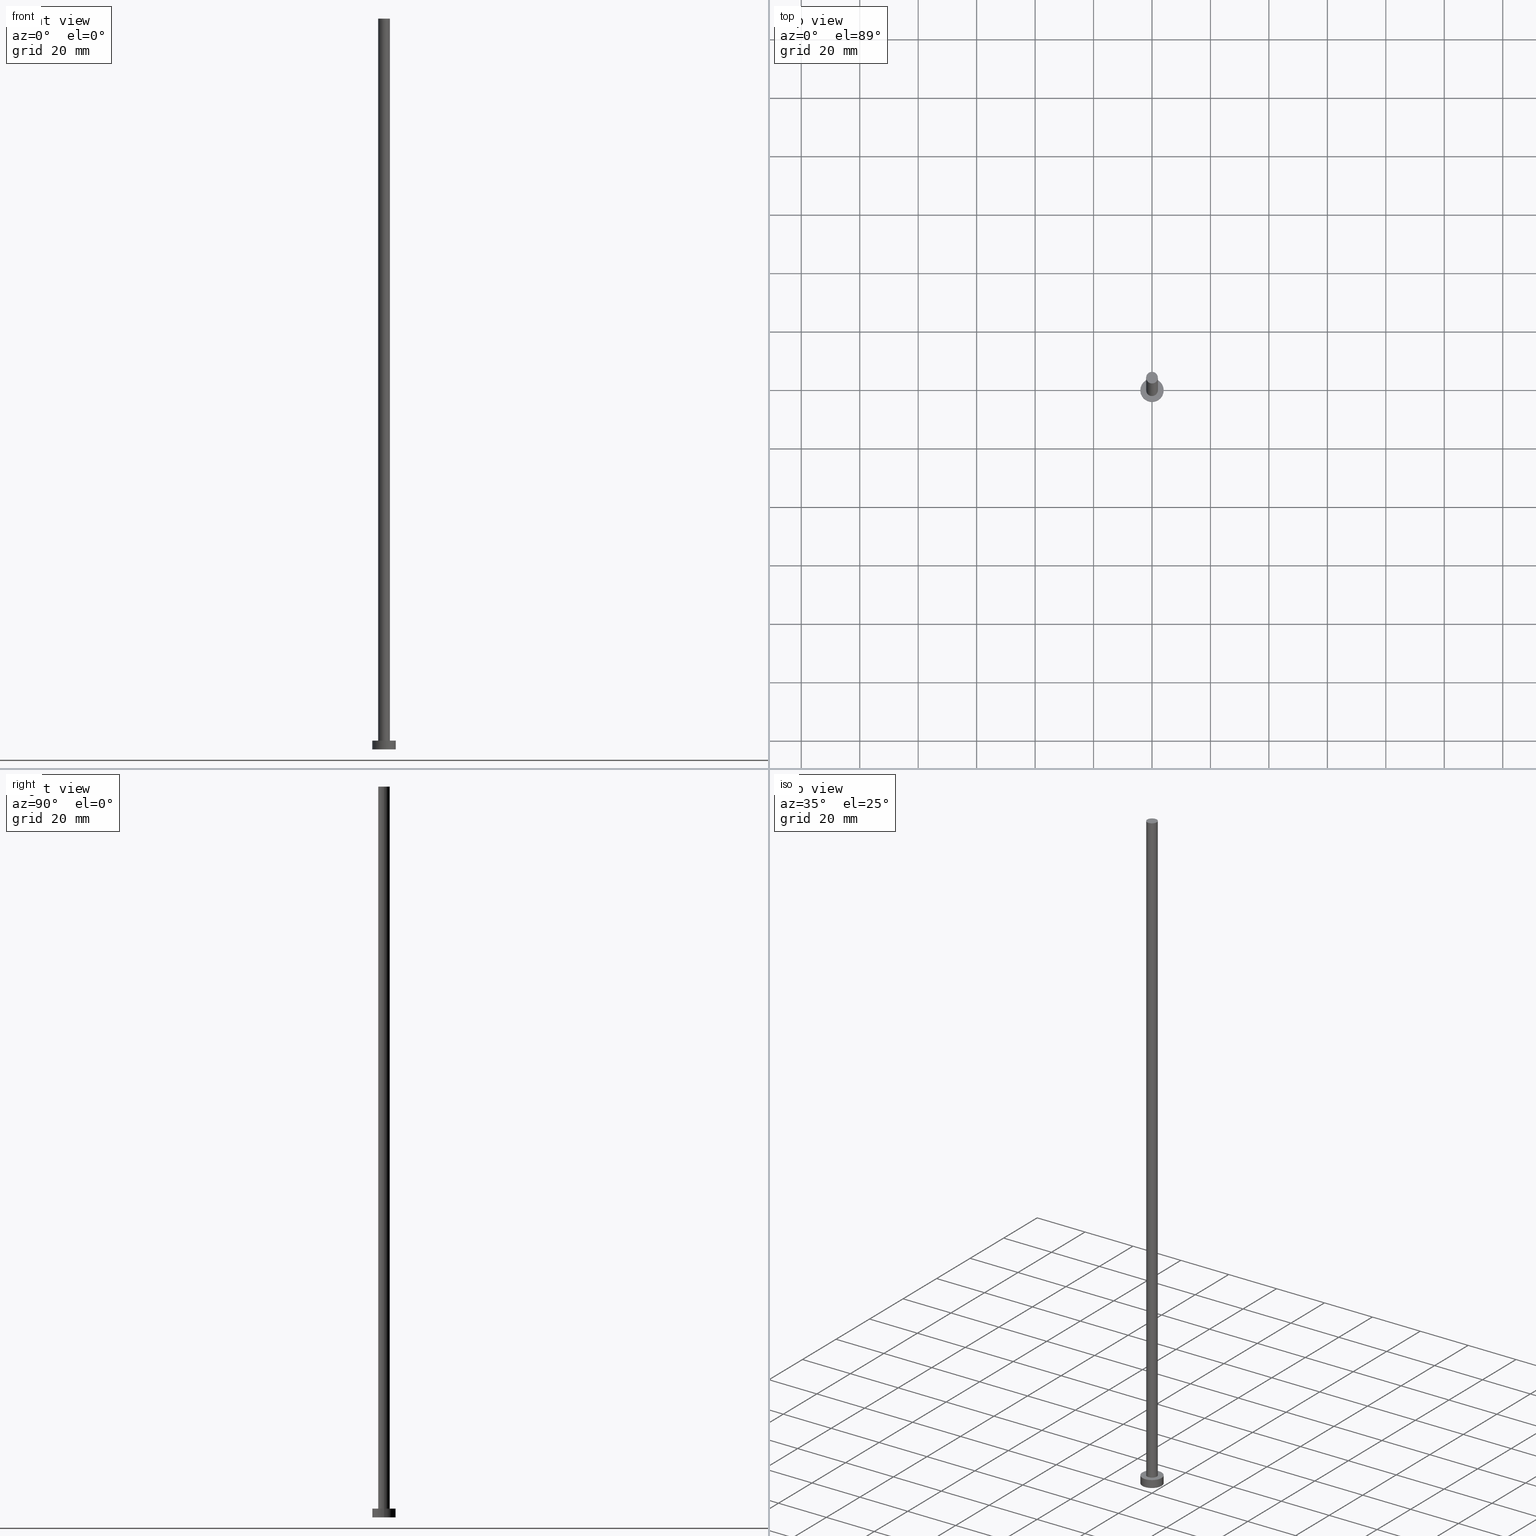
[diagram: canonical four-view strip — front | top / right | iso, engineering-drawing reading convention]
A machine part, canonical four-view strip (front | top / right | iso — engineering-drawing reading convention). The complete STEP part file that produces these views, byte-faithful:
ISO-10303-21;
HEADER;
FILE_DESCRIPTION (( 'STEP AP203' ),
    '1' );
FILE_NAME ('8a8c.STEP',
    '2023-02-12T12:39:16',
    ( '' ),
    ( '' ),
    'SwSTEP 2.0',
    'SolidWorks 2019',
    '' );
FILE_SCHEMA (( 'CONFIG_CONTROL_DESIGN' ));
ENDSEC;

DATA;
#1 = DIRECTION ( 'NONE',  ( 1.000000000000000000, 0.000000000000000000, 0.000000000000000000 ) ) ;
#2 = FACE_BOUND ( 'NONE', #85, .T. ) ;
#3 = EDGE_LOOP ( 'NONE', ( #123, #203, #207, #62 ) ) ;
#4 = ADVANCED_FACE ( 'NONE', ( #243 ), #206, .T. ) ;
#5 = ORIENTED_EDGE ( 'NONE', *, *, #8, .F. ) ;
#6 = CIRCLE ( 'NONE', #153, 4.000000000000000000 ) ;
#7 = VERTEX_POINT ( 'NONE', #129 ) ;
#8 = EDGE_CURVE ( 'NONE', #60, #78, #184, .T. ) ;
#9 = CARTESIAN_POINT ( 'NONE',  ( 0.000000000000000000, 0.000000000000000000, 250.0000000000000000 ) ) ;
#10 = EDGE_CURVE ( 'NONE', #25, #183, #131, .T. ) ;
#11 = CARTESIAN_POINT ( 'NONE',  ( 0.000000000000000000, 0.000000000000000000, 250.0000000000000000 ) ) ;
#12 = PERSON_AND_ORGANIZATION ( #40, #136 ) ;
#13 = APPROVAL_PERSON_ORGANIZATION ( #92, #106, #255 ) ;
#14 = DIRECTION ( 'NONE',  ( 1.000000000000000000, 0.000000000000000000, 0.000000000000000000 ) ) ;
#15 = APPROVAL_STATUS ( 'not_yet_approved' ) ;
#16 = DIRECTION ( 'NONE',  ( -0.000000000000000000, -0.000000000000000000, -1.000000000000000000 ) ) ;
#17 = PERSON_AND_ORGANIZATION_ROLE ( 'design_owner' ) ;
#18 = CIRCLE ( 'NONE', #166, 2.000000000000000000 ) ;
#19 = PERSON_AND_ORGANIZATION ( #40, #136 ) ;
#20 = CC_DESIGN_PERSON_AND_ORGANIZATION_ASSIGNMENT ( #72, #50, ( #46 ) ) ;
#21 = DIRECTION ( 'NONE',  ( 0.000000000000000000, 0.000000000000000000, 1.000000000000000000 ) ) ;
#22 = EDGE_LOOP ( 'NONE', ( #44, #64 ) ) ;
#23 = PRODUCT_RELATED_PRODUCT_CATEGORY ( 'detail', '', ( #182 ) ) ;
#24 = EDGE_LOOP ( 'NONE', ( #105, #86, #127, #150 ) ) ;
#25 = VERTEX_POINT ( 'NONE', #188 ) ;
#26 = CARTESIAN_POINT ( 'NONE',  ( -4.000000000000000000, 0.000000000000000000, 3.000000000000000000 ) ) ;
#27 = CC_DESIGN_SECURITY_CLASSIFICATION ( #144, ( #46 ) ) ;
#28 = CARTESIAN_POINT ( 'NONE',  ( 2.000000000000000000, 2.449293598294706414E-16, 250.0000000000000000 ) ) ;
#29 = EDGE_CURVE ( 'NONE', #7, #226, #162, .T. ) ;
#30 = APPROVAL_ROLE ( '' ) ;
#31 = AXIS2_PLACEMENT_3D ( 'NONE', #143, #118, #1 ) ;
#32 = MECHANICAL_CONTEXT ( 'NONE', #237, 'mechanical' ) ;
#33 = EDGE_CURVE ( 'NONE', #183, #226, #212, .T. ) ;
#34 = CARTESIAN_POINT ( 'NONE',  ( 0.000000000000000000, 0.000000000000000000, 3.000000000000000000 ) ) ;
#35 = EDGE_CURVE ( 'NONE', #78, #60, #147, .T. ) ;
#36 = VECTOR ( 'NONE', #179, 1000.000000000000000 ) ;
#37 = FACE_OUTER_BOUND ( 'NONE', #165, .T. ) ;
#38 = FACE_OUTER_BOUND ( 'NONE', #22, .T. ) ;
#39 = DIRECTION ( 'NONE',  ( 0.000000000000000000, 0.000000000000000000, 1.000000000000000000 ) ) ;
#40 = PERSON ( 'NEUR�EN�', 'NEUR�EN�', 'NEUR�EN�', ('NEUR�EN�'), ('NEUR�EN�'), ('NEUR�EN�') ) ;
#41 = EDGE_LOOP ( 'NONE', ( #5, #125, #145, #205 ) ) ;
#42 = ORIENTED_EDGE ( 'NONE', *, *, #33, .T. ) ;
#43 = ORIENTED_EDGE ( 'NONE', *, *, #112, .F. ) ;
#44 = ORIENTED_EDGE ( 'NONE', *, *, #35, .T. ) ;
#45 = CARTESIAN_POINT ( 'NONE',  ( 0.000000000000000000, 0.000000000000000000, 3.000000000000000000 ) ) ;
#46 = PRODUCT_DEFINITION_FORMATION_WITH_SPECIFIED_SOURCE ( 'LIBOVOLN�', '', #182, .NOT_KNOWN. ) ;
#47 = DIRECTION ( 'NONE',  ( 0.000000000000000000, 0.000000000000000000, 1.000000000000000000 ) ) ;
#48 = CALENDAR_DATE ( 2023, 12, 2 ) ;
#49 = ADVANCED_FACE ( 'NONE', ( #65 ), #132, .T. ) ;
#50 = PERSON_AND_ORGANIZATION_ROLE ( 'creator' ) ;
#51 = APPROVAL ( #221, 'NEUR�EN�' ) ;
#52 = CARTESIAN_POINT ( 'NONE',  ( -2.000000000000000000, 0.000000000000000000, 250.0000000000000000 ) ) ;
#53 = PERSON_AND_ORGANIZATION ( #40, #136 ) ;
#54 = CARTESIAN_POINT ( 'NONE',  ( 0.000000000000000000, 0.000000000000000000, 3.000000000000000000 ) ) ;
#55 = CARTESIAN_POINT ( 'NONE',  ( 2.000000000000000000, 2.449293598294706414E-16, 3.000000000000000000 ) ) ;
#56 = PLANE ( 'NONE',  #245 ) ;
#57 = DIRECTION ( 'NONE',  ( -0.000000000000000000, -0.000000000000000000, -1.000000000000000000 ) ) ;
#58 = AXIS2_PLACEMENT_3D ( 'NONE', #88, #173, #189 ) ;
#59 = AXIS2_PLACEMENT_3D ( 'NONE', #119, #120, #238 ) ;
#60 = VERTEX_POINT ( 'NONE', #28 ) ;
#61 = PRODUCT_DEFINITION_SHAPE ( 'NONE', 'NONE',  #83 ) ;
#62 = ORIENTED_EDGE ( 'NONE', *, *, #10, .F. ) ;
#63 = LOCAL_TIME ( 13, 39, 16.00000000000000000, #114 ) ;
#64 = ORIENTED_EDGE ( 'NONE', *, *, #8, .T. ) ;
#65 = FACE_OUTER_BOUND ( 'NONE', #24, .T. ) ;
#66 = CC_DESIGN_PERSON_AND_ORGANIZATION_ASSIGNMENT ( #19, #199, ( #46 ) ) ;
#67 = AXIS2_PLACEMENT_3D ( 'NONE', #9, #87, #152 ) ;
#68 = FACE_OUTER_BOUND ( 'NONE', #187, .T. ) ;
#69 = COORDINATED_UNIVERSAL_TIME_OFFSET ( 1, 0, .AHEAD. ) ;
#70 = DIRECTION ( 'NONE',  ( -1.000000000000000000, 0.000000000000000000, 0.000000000000000000 ) ) ;
#71 = ADVANCED_FACE ( 'NONE', ( #68 ), #115, .T. ) ;
#72 = PERSON_AND_ORGANIZATION ( #40, #136 ) ;
#73 = LOCAL_TIME ( 13, 39, 16.00000000000000000, #69 ) ;
#74 = PLANE ( 'NONE',  #111 ) ;
#75 = DATE_AND_TIME ( #91, #73 ) ;
#76 = CARTESIAN_POINT ( 'NONE',  ( -2.000000000000000000, 0.000000000000000000, 250.0000000000000000 ) ) ;
#77 = CC_DESIGN_PERSON_AND_ORGANIZATION_ASSIGNMENT ( #197, #17, ( #182 ) ) ;
#78 = VERTEX_POINT ( 'NONE', #76 ) ;
#79 = DATE_AND_TIME ( #201, #96 ) ;
#80 = ORIENTED_EDGE ( 'NONE', *, *, #126, .T. ) ;
#81 = APPROVAL_PERSON_ORGANIZATION ( #12, #109, #30 ) ;
#82 = PERSON_AND_ORGANIZATION_ROLE ( 'classification_officer' ) ;
#83 = PRODUCT_DEFINITION ( 'NEZN�M�', '', #46, #93 ) ;
#84 = AXIS2_PLACEMENT_3D ( 'NONE', #233, #21, #140 ) ;
#85 = EDGE_LOOP ( 'NONE', ( #43, #241 ) ) ;
#86 = ORIENTED_EDGE ( 'NONE', *, *, #35, .F. ) ;
#87 = DIRECTION ( 'NONE',  ( 0.000000000000000000, 0.000000000000000000, 1.000000000000000000 ) ) ;
#88 = CARTESIAN_POINT ( 'NONE',  ( 0.000000000000000000, 0.000000000000000000, 250.0000000000000000 ) ) ;
#89 = ADVANCED_FACE ( 'NONE', ( #38 ), #232, .T. ) ;
#90 =( NAMED_UNIT ( * ) SI_UNIT ( $, .STERADIAN. ) SOLID_ANGLE_UNIT ( ) );
#91 = CALENDAR_DATE ( 2023, 12, 2 ) ;
#92 = PERSON_AND_ORGANIZATION ( #40, #136 ) ;
#93 = DESIGN_CONTEXT ( 'detailed design', #181, 'design' ) ;
#94 = DIRECTION ( 'NONE',  ( 0.000000000000000000, 0.000000000000000000, 1.000000000000000000 ) ) ;
#95 = APPROVAL_DATE_TIME ( #75, #106 ) ;
#96 = LOCAL_TIME ( 13, 39, 16.00000000000000000, #160 ) ;
#97 = DIRECTION ( 'NONE',  ( -1.000000000000000000, 0.000000000000000000, 0.000000000000000000 ) ) ;
#98 = AXIS2_PLACEMENT_3D ( 'NONE', #215, #47, #247 ) ;
#99 = DIRECTION ( 'NONE',  ( 1.000000000000000000, 0.000000000000000000, 0.000000000000000000 ) ) ;
#100 = SHAPE_DEFINITION_REPRESENTATION ( #61, #191 ) ;
#101 = CARTESIAN_POINT ( 'NONE',  ( 0.000000000000000000, 0.000000000000000000, 3.000000000000000000 ) ) ;
#102 = ADVANCED_FACE ( 'NONE', ( #37 ), #74, .F. ) ;
#103 = DATE_TIME_ROLE ( 'classification_date' ) ;
#104 = FACE_OUTER_BOUND ( 'NONE', #186, .T. ) ;
#105 = ORIENTED_EDGE ( 'NONE', *, *, #158, .F. ) ;
#106 = APPROVAL ( #15, 'NEUR�EN�' ) ;
#107 = VERTEX_POINT ( 'NONE', #55 ) ;
#108 = VERTEX_POINT ( 'NONE', #195 ) ;
#109 = APPROVAL ( #213, 'NEUR�EN�' ) ;
#110 = DIRECTION ( 'NONE',  ( -0.000000000000000000, -0.000000000000000000, -1.000000000000000000 ) ) ;
#111 = AXIS2_PLACEMENT_3D ( 'NONE', #138, #236, #159 ) ;
#112 = EDGE_CURVE ( 'NONE', #108, #107, #18, .T. ) ;
#113 = DATE_AND_TIME ( #48, #211 ) ;
#114 = COORDINATED_UNIVERSAL_TIME_OFFSET ( 1, 0, .AHEAD. ) ;
#115 = CYLINDRICAL_SURFACE ( 'NONE', #242, 4.000000000000000000 ) ;
#116 = DIRECTION ( 'NONE',  ( -0.000000000000000000, -0.000000000000000000, -1.000000000000000000 ) ) ;
#117 = CC_DESIGN_PERSON_AND_ORGANIZATION_ASSIGNMENT ( #53, #82, ( #144 ) ) ;
#118 = DIRECTION ( 'NONE',  ( 0.000000000000000000, 0.000000000000000000, 1.000000000000000000 ) ) ;
#119 = CARTESIAN_POINT ( 'NONE',  ( 0.000000000000000000, 0.000000000000000000, 250.0000000000000000 ) ) ;
#120 = DIRECTION ( 'NONE',  ( 0.000000000000000000, 0.000000000000000000, 1.000000000000000000 ) ) ;
#121 = AXIS2_PLACEMENT_3D ( 'NONE', #168, #209, #244 ) ;
#122 = DIRECTION ( 'NONE',  ( 1.000000000000000000, 0.000000000000000000, -0.000000000000000000 ) ) ;
#123 = ORIENTED_EDGE ( 'NONE', *, *, #134, .F. ) ;
#124 = APPROVAL_ROLE ( '' ) ;
#125 = ORIENTED_EDGE ( 'NONE', *, *, #158, .T. ) ;
#126 = EDGE_CURVE ( 'NONE', #25, #7, #240, .T. ) ;
#127 = ORIENTED_EDGE ( 'NONE', *, *, #141, .T. ) ;
#128 = AXIS2_PLACEMENT_3D ( 'NONE', #231, #94, #216 ) ;
#129 = CARTESIAN_POINT ( 'NONE',  ( 4.000000000000000000, 4.898587196589412829E-16, 3.000000000000000000 ) ) ;
#130 =( LENGTH_UNIT ( ) NAMED_UNIT ( * ) SI_UNIT ( .MILLI., .METRE. ) );
#131 = LINE ( 'NONE', #26, #253 ) ;
#132 = CYLINDRICAL_SURFACE ( 'NONE', #176, 2.000000000000000000 ) ;
#133 = DIRECTION ( 'NONE',  ( 1.000000000000000000, 0.000000000000000000, 0.000000000000000000 ) ) ;
#134 = EDGE_CURVE ( 'NONE', #7, #25, #6, .T. ) ;
#135 = COORDINATED_UNIVERSAL_TIME_OFFSET ( 1, 0, .AHEAD. ) ;
#136 = ORGANIZATION ( 'NEUR�EN�', 'NEUR�EN�', '' ) ;
#137 = AXIS2_PLACEMENT_3D ( 'NONE', #45, #228, #133 ) ;
#138 = CARTESIAN_POINT ( 'NONE',  ( 0.000000000000000000, 0.000000000000000000, 0.000000000000000000 ) ) ;
#139 = FACE_OUTER_BOUND ( 'NONE', #3, .T. ) ;
#140 = DIRECTION ( 'NONE',  ( 1.000000000000000000, 0.000000000000000000, 0.000000000000000000 ) ) ;
#141 = EDGE_CURVE ( 'NONE', #78, #108, #156, .T. ) ;
#142 = APPROVAL_DATE_TIME ( #204, #51 ) ;
#143 = CARTESIAN_POINT ( 'NONE',  ( 0.000000000000000000, 0.000000000000000000, 0.000000000000000000 ) ) ;
#144 = SECURITY_CLASSIFICATION ( '', '', #146 ) ;
#145 = ORIENTED_EDGE ( 'NONE', *, *, #210, .T. ) ;
#146 = SECURITY_CLASSIFICATION_LEVEL ( 'unclassified' ) ;
#147 = CIRCLE ( 'NONE', #58, 2.000000000000000000 ) ;
#148 = CARTESIAN_POINT ( 'NONE',  ( 0.000000000000000000, 0.000000000000000000, 3.000000000000000000 ) ) ;
#149 = ORIENTED_EDGE ( 'NONE', *, *, #29, .F. ) ;
#150 = ORIENTED_EDGE ( 'NONE', *, *, #112, .T. ) ;
#151 = CC_DESIGN_APPROVAL ( #106, ( #83 ) ) ;
#152 = DIRECTION ( 'NONE',  ( 1.000000000000000000, 0.000000000000000000, 0.000000000000000000 ) ) ;
#153 = AXIS2_PLACEMENT_3D ( 'NONE', #101, #249, #99 ) ;
#154 = PERSON_AND_ORGANIZATION_ROLE ( 'creator' ) ;
#155 = AXIS2_PLACEMENT_3D ( 'NONE', #34, #16, #97 ) ;
#156 = LINE ( 'NONE', #52, #36 ) ;
#157 = PERSON_AND_ORGANIZATION ( #40, #136 ) ;
#158 = EDGE_CURVE ( 'NONE', #60, #107, #217, .T. ) ;
#159 = DIRECTION ( 'NONE',  ( 1.000000000000000000, 0.000000000000000000, -0.000000000000000000 ) ) ;
#160 = COORDINATED_UNIVERSAL_TIME_OFFSET ( 1, 0, .AHEAD. ) ;
#161 = CIRCLE ( 'NONE', #31, 4.000000000000000000 ) ;
#162 = LINE ( 'NONE', #239, #230 ) ;
#163 = ADVANCED_FACE ( 'NONE', ( #139 ), #196, .T. ) ;
#164 = APPROVAL_PERSON_ORGANIZATION ( #234, #51, #124 ) ;
#165 = EDGE_LOOP ( 'NONE', ( #227, #169 ) ) ;
#166 = AXIS2_PLACEMENT_3D ( 'NONE', #54, #200, #14 ) ;
#167 = ORIENTED_EDGE ( 'NONE', *, *, #126, .F. ) ;
#168 = CARTESIAN_POINT ( 'NONE',  ( 0.000000000000000000, 0.000000000000000000, 250.0000000000000000 ) ) ;
#169 = ORIENTED_EDGE ( 'NONE', *, *, #171, .F. ) ;
#170 = CARTESIAN_POINT ( 'NONE',  ( 4.000000000000000000, 4.898587196589412829E-16, 0.000000000000000000 ) ) ;
#171 = EDGE_CURVE ( 'NONE', #226, #183, #161, .T. ) ;
#172 = DATE_AND_TIME ( #192, #63 ) ;
#173 = DIRECTION ( 'NONE',  ( 0.000000000000000000, 0.000000000000000000, 1.000000000000000000 ) ) ;
#174 = MANIFOLD_SOLID_BREP ( 'P�idat vysunut�m3', #175 ) ;
#175 = CLOSED_SHELL ( 'NONE', ( #4, #163, #71, #219, #102, #49, #89 ) ) ;
#176 = AXIS2_PLACEMENT_3D ( 'NONE', #11, #246, #70 ) ;
#177 = APPLICATION_PROTOCOL_DEFINITION ( 'international standard', 'config_control_design', 1994, #181 ) ;
#178 = CC_DESIGN_DATE_AND_TIME_ASSIGNMENT ( #79, #103, ( #144 ) ) ;
#179 = DIRECTION ( 'NONE',  ( -0.000000000000000000, -0.000000000000000000, -1.000000000000000000 ) ) ;
#180 = CARTESIAN_POINT ( 'NONE',  ( -4.000000000000000000, 0.000000000000000000, 0.000000000000000000 ) ) ;
#181 = APPLICATION_CONTEXT ( 'configuration controlled 3d designs of mechanical parts and assemblies' ) ;
#182 = PRODUCT ( '8a8c', '8a8c', '', ( #32 ) ) ;
#183 = VERTEX_POINT ( 'NONE', #180 ) ;
#184 = CIRCLE ( 'NONE', #67, 2.000000000000000000 ) ;
#185 = ORIENTED_EDGE ( 'NONE', *, *, #10, .T. ) ;
#186 = EDGE_LOOP ( 'NONE', ( #80, #224 ) ) ;
#187 = EDGE_LOOP ( 'NONE', ( #149, #167, #185, #42 ) ) ;
#188 = CARTESIAN_POINT ( 'NONE',  ( -4.000000000000000000, 0.000000000000000000, 3.000000000000000000 ) ) ;
#189 = DIRECTION ( 'NONE',  ( 1.000000000000000000, 0.000000000000000000, 0.000000000000000000 ) ) ;
#190 = DATE_TIME_ROLE ( 'creation_date' ) ;
#191 = ADVANCED_BREP_SHAPE_REPRESENTATION ( '8a8c', ( #174, #128 ), #198 ) ;
#192 = CALENDAR_DATE ( 2023, 12, 2 ) ;
#193 = UNCERTAINTY_MEASURE_WITH_UNIT (LENGTH_MEASURE( 1.000000000000000082E-05 ), #130, 'distance_accuracy_value', 'NONE');
#194 = CARTESIAN_POINT ( 'NONE',  ( 0.000000000000000000, 0.000000000000000000, 3.000000000000000000 ) ) ;
#195 = CARTESIAN_POINT ( 'NONE',  ( -2.000000000000000000, 0.000000000000000000, 3.000000000000000000 ) ) ;
#196 = CYLINDRICAL_SURFACE ( 'NONE', #155, 4.000000000000000000 ) ;
#197 = PERSON_AND_ORGANIZATION ( #40, #136 ) ;
#198 =( GEOMETRIC_REPRESENTATION_CONTEXT ( 3 ) GLOBAL_UNCERTAINTY_ASSIGNED_CONTEXT ( ( #193 ) ) GLOBAL_UNIT_ASSIGNED_CONTEXT ( ( #130, #208, #90 ) ) REPRESENTATION_CONTEXT ( 'NONE', 'WORKASPACE' ) );
#199 = PERSON_AND_ORGANIZATION_ROLE ( 'design_supplier' ) ;
#200 = DIRECTION ( 'NONE',  ( 0.000000000000000000, 0.000000000000000000, 1.000000000000000000 ) ) ;
#201 = CALENDAR_DATE ( 2023, 12, 2 ) ;
#202 = CALENDAR_DATE ( 2023, 12, 2 ) ;
#203 = ORIENTED_EDGE ( 'NONE', *, *, #29, .T. ) ;
#204 = DATE_AND_TIME ( #202, #223 ) ;
#205 = ORIENTED_EDGE ( 'NONE', *, *, #141, .F. ) ;
#206 = CYLINDRICAL_SURFACE ( 'NONE', #121, 2.000000000000000000 ) ;
#207 = ORIENTED_EDGE ( 'NONE', *, *, #171, .T. ) ;
#208 =( NAMED_UNIT ( * ) PLANE_ANGLE_UNIT ( ) SI_UNIT ( $, .RADIAN. ) );
#209 = DIRECTION ( 'NONE',  ( -0.000000000000000000, -0.000000000000000000, -1.000000000000000000 ) ) ;
#210 = EDGE_CURVE ( 'NONE', #107, #108, #235, .T. ) ;
#211 = LOCAL_TIME ( 13, 39, 16.00000000000000000, #135 ) ;
#212 = CIRCLE ( 'NONE', #98, 4.000000000000000000 ) ;
#213 = APPROVAL_STATUS ( 'not_yet_approved' ) ;
#214 = CC_DESIGN_APPROVAL ( #51, ( #144 ) ) ;
#215 = CARTESIAN_POINT ( 'NONE',  ( 0.000000000000000000, 0.000000000000000000, 0.000000000000000000 ) ) ;
#216 = DIRECTION ( 'NONE',  ( 1.000000000000000000, 0.000000000000000000, 0.000000000000000000 ) ) ;
#217 = LINE ( 'NONE', #220, #251 ) ;
#218 = DIRECTION ( 'NONE',  ( -0.000000000000000000, -0.000000000000000000, -1.000000000000000000 ) ) ;
#219 = ADVANCED_FACE ( 'NONE', ( #2, #104 ), #56, .T. ) ;
#220 = CARTESIAN_POINT ( 'NONE',  ( 2.000000000000000000, 2.449293598294706414E-16, 250.0000000000000000 ) ) ;
#221 = APPROVAL_STATUS ( 'not_yet_approved' ) ;
#222 = COORDINATED_UNIVERSAL_TIME_OFFSET ( 1, 0, .AHEAD. ) ;
#223 = LOCAL_TIME ( 13, 39, 16.00000000000000000, #222 ) ;
#224 = ORIENTED_EDGE ( 'NONE', *, *, #134, .T. ) ;
#225 = CC_DESIGN_DATE_AND_TIME_ASSIGNMENT ( #113, #190, ( #83 ) ) ;
#226 = VERTEX_POINT ( 'NONE', #170 ) ;
#227 = ORIENTED_EDGE ( 'NONE', *, *, #33, .F. ) ;
#228 = DIRECTION ( 'NONE',  ( 0.000000000000000000, 0.000000000000000000, 1.000000000000000000 ) ) ;
#229 = APPLICATION_PROTOCOL_DEFINITION ( 'international standard', 'config_control_design', 1994, #237 ) ;
#230 = VECTOR ( 'NONE', #57, 1000.000000000000000 ) ;
#231 = CARTESIAN_POINT ( 'NONE',  ( 0.000000000000000000, 0.000000000000000000, 0.000000000000000000 ) ) ;
#232 = PLANE ( 'NONE',  #59 ) ;
#233 = CARTESIAN_POINT ( 'NONE',  ( 0.000000000000000000, 0.000000000000000000, 3.000000000000000000 ) ) ;
#234 = PERSON_AND_ORGANIZATION ( #40, #136 ) ;
#235 = CIRCLE ( 'NONE', #137, 2.000000000000000000 ) ;
#236 = DIRECTION ( 'NONE',  ( 0.000000000000000000, 0.000000000000000000, 1.000000000000000000 ) ) ;
#237 = APPLICATION_CONTEXT ( 'configuration controlled 3d designs of mechanical parts and assemblies' ) ;
#238 = DIRECTION ( 'NONE',  ( 1.000000000000000000, 0.000000000000000000, -0.000000000000000000 ) ) ;
#239 = CARTESIAN_POINT ( 'NONE',  ( 4.000000000000000000, 4.898587196589412829E-16, 3.000000000000000000 ) ) ;
#240 = CIRCLE ( 'NONE', #84, 4.000000000000000000 ) ;
#241 = ORIENTED_EDGE ( 'NONE', *, *, #210, .F. ) ;
#242 = AXIS2_PLACEMENT_3D ( 'NONE', #194, #218, #254 ) ;
#243 = FACE_OUTER_BOUND ( 'NONE', #41, .T. ) ;
#244 = DIRECTION ( 'NONE',  ( -1.000000000000000000, 0.000000000000000000, 0.000000000000000000 ) ) ;
#245 = AXIS2_PLACEMENT_3D ( 'NONE', #148, #39, #122 ) ;
#246 = DIRECTION ( 'NONE',  ( -0.000000000000000000, -0.000000000000000000, -1.000000000000000000 ) ) ;
#247 = DIRECTION ( 'NONE',  ( 1.000000000000000000, 0.000000000000000000, 0.000000000000000000 ) ) ;
#248 = APPROVAL_DATE_TIME ( #172, #109 ) ;
#249 = DIRECTION ( 'NONE',  ( 0.000000000000000000, 0.000000000000000000, 1.000000000000000000 ) ) ;
#250 = CC_DESIGN_APPROVAL ( #109, ( #46 ) ) ;
#251 = VECTOR ( 'NONE', #116, 1000.000000000000000 ) ;
#252 = CC_DESIGN_PERSON_AND_ORGANIZATION_ASSIGNMENT ( #157, #154, ( #83 ) ) ;
#253 = VECTOR ( 'NONE', #110, 1000.000000000000000 ) ;
#254 = DIRECTION ( 'NONE',  ( -1.000000000000000000, 0.000000000000000000, 0.000000000000000000 ) ) ;
#255 = APPROVAL_ROLE ( '' ) ;
ENDSEC;
END-ISO-10303-21;
